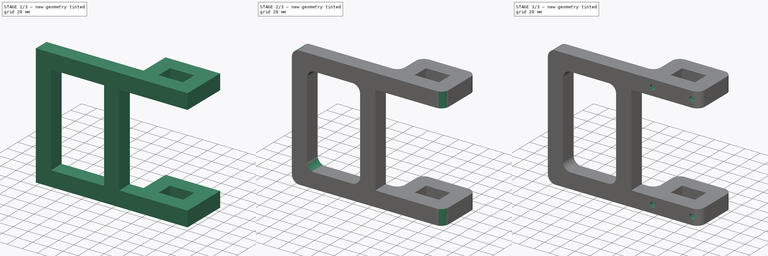
[diagram: build sequence overview — one tinted view per stage of 3, left to right]
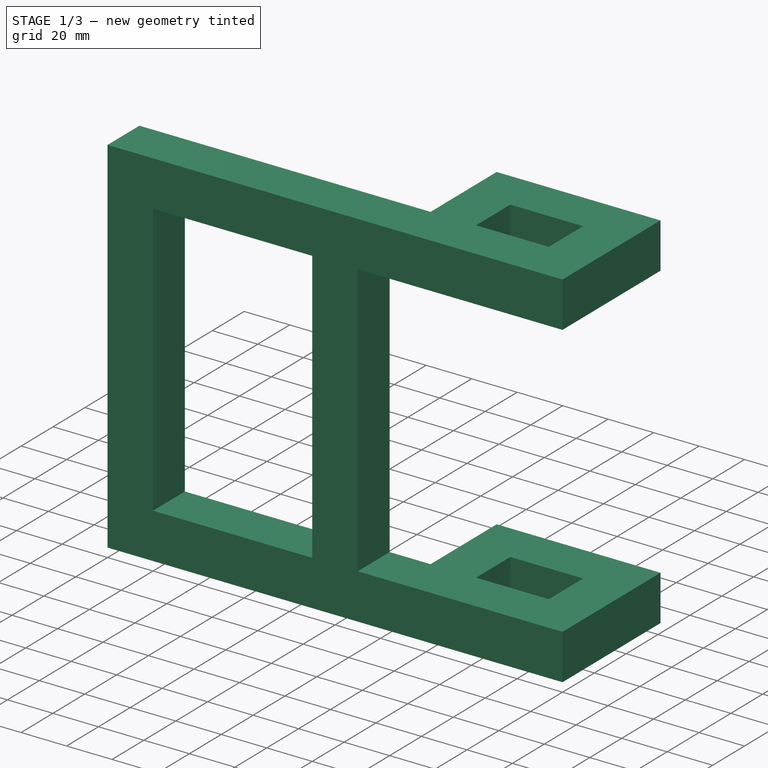
[diagram: stage 1 of 3 — iso view after this stage's code; geometry added in this stage tinted green]
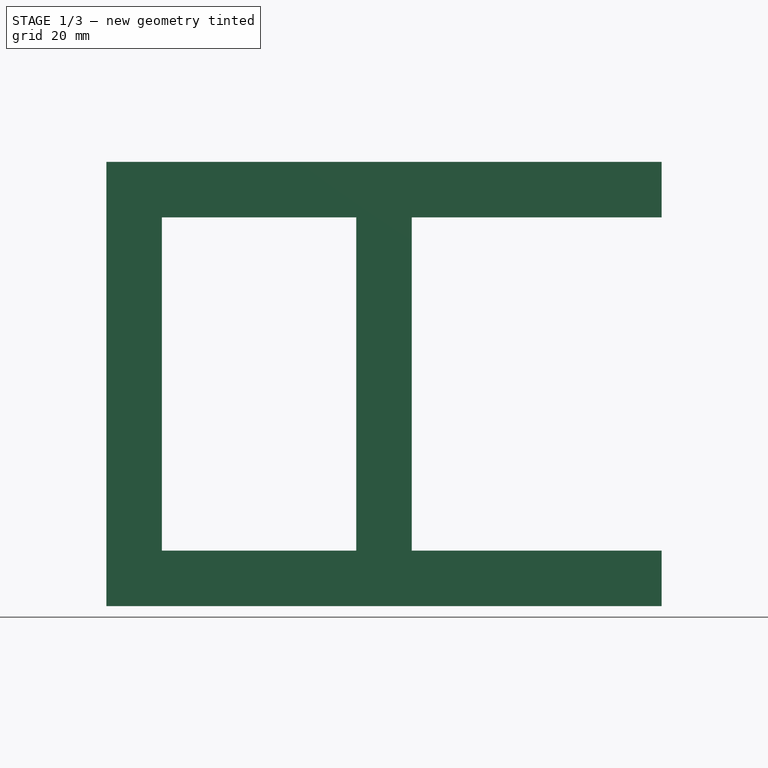
[diagram: stage 1 of 3 — front view after this stage's code; geometry added in this stage tinted green]
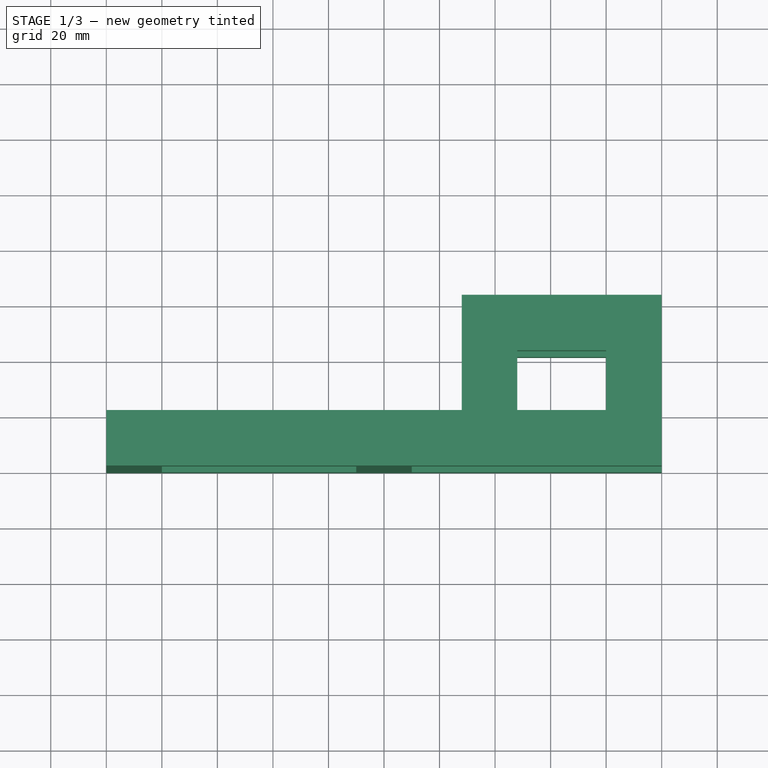
[diagram: stage 1 of 3 — top view after this stage's code; geometry added in this stage tinted green]
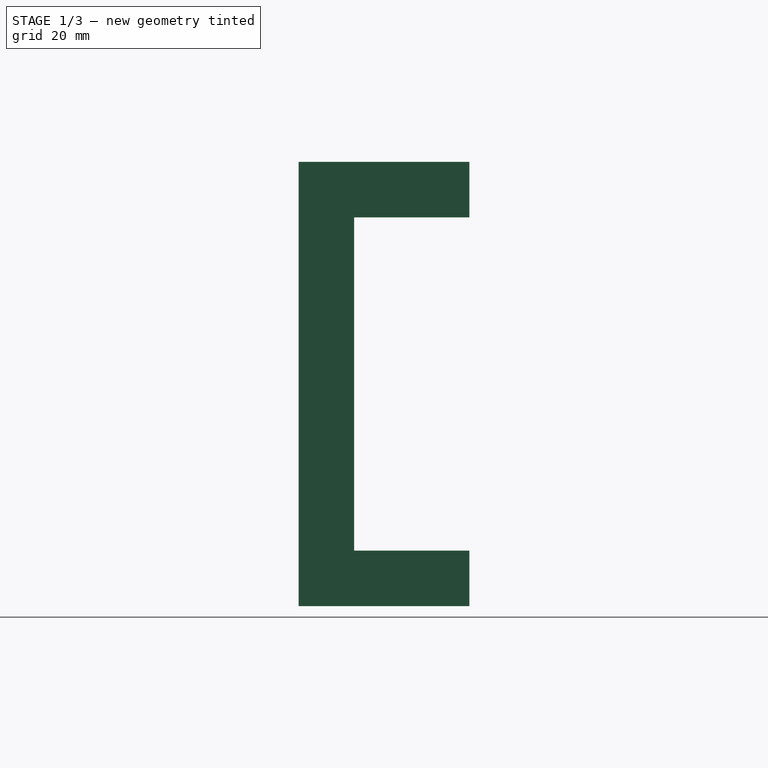
[diagram: stage 1 of 3 — right view after this stage's code; geometry added in this stage tinted green]
FCSTD DOCUMENT  (FreeCAD 1.0R39285 (Git))
Label: HallBarRail
License: All rights reserved
LicenseURL: https://en.wikipedia.org/wiki/All_rights_reserved
objects: Sketcher::SketchObject×4, PartDesign::Pocket×2, Spreadsheet::Sheet×1, PartDesign::Pad×1, PartDesign::Fillet×1, PartDesign::Hole×1, PartDesign::Body×1
note: 24 computed .brp shape members not serialized (recipe doc carries the construction recipe); baked Part::Feature solids carry a one-line shape summary decoded from their .brp

FEATURE [Sketcher::SketchObject] Sketch
  ArcFitTolerance = 1e-06
  AttachmentSupport = -> [XY_Plane]
  FullyConstrained = true
  MakeInternals = false
  MapMode = 5
  expr: Constraints[22] = <<config>>.thickness
  expr: Constraints[23] = <<config>>.thickness
  expr: Constraints[24] = <<config>>.thickness
  expr: Constraints[25] = <<config>>.thickness
  expr: Constraints[26] = <<config>>.thickness
  sketch-geometry (10):
    g0: LineSegment StartX=0 StartY=0 StartZ=0 EndX=200 EndY=0 EndZ=0
    g1: LineSegment StartX=200 StartY=0 StartZ=0 EndX=200 EndY=61.5 EndZ=0
    g2: LineSegment StartX=200 StartY=61.5 StartZ=0 EndX=128 EndY=61.5 EndZ=0
    g3: LineSegment StartX=128 StartY=61.5 StartZ=0 EndX=128 EndY=20 EndZ=0
    g4: LineSegment StartX=128 StartY=20 StartZ=0 EndX=0 EndY=20 EndZ=0
    g5: LineSegment StartX=0 StartY=20 StartZ=0 EndX=0 EndY=0 EndZ=0
    g6: LineSegment StartX=148 StartY=20 StartZ=0 EndX=148 EndY=41.5 EndZ=0
    g7: LineSegment StartX=148 StartY=41.5 StartZ=0 EndX=180 EndY=41.5 EndZ=0
    g8: LineSegment StartX=180 StartY=41.5 StartZ=0 EndX=180 EndY=20 EndZ=0
    g9: LineSegment StartX=180 StartY=20 StartZ=0 EndX=148 EndY=20 EndZ=0
  constraints (29):
    c: Coincident(g-1,g0)
    c: PointOnObject(g0,g-1)
    c: Coincident(g0,g1)
    c: Vertical(g1)
    c: Coincident(g1,g2)
    c: Horizontal(g2)
    c: Coincident(g2,g3)
    c: Vertical(g3)
    c: Coincident(g3,g4)
    c: PointOnObject(g4,g-2)
    c: Horizontal(g4)
    c: Coincident(g4,g5)
    c: Coincident(g5,g0)
    c: Coincident(g6,g7)
    c: Coincident(g7,g8)
    c: Coincident(g8,g9)
    c: Coincident(g9,g6)
    c: Vertical(g6)
    c: Vertical(g8)
    c: Horizontal(g7)
    c: Horizontal(g9)
    c: DistanceX(g0,g0) = 200
    c: DistanceY(g5,g5) = 20
    c: DistanceX(g8,g0) = 20
    c: DistanceX(g2,g6) = 20
    c: DistanceY(g7,g1) = 20
    c: DistanceY(g0,g8) = 20
    c: DistanceX(g9,g9) = 32
    c: DistanceY(g8,g8) = 21.5
FEATURE [Spreadsheet::Sheet] Spreadsheet  label="config"
  cells = A1='thickness; B1(thickness)==20 mm
FEATURE [PartDesign::Pad] Pad
  Direction = (0,0,1)
  Length = 160
  Length2 = 10
  Midplane = true
  Profile = -> Sketch
  ReferenceAxis = -> Sketch [N_Axis]
  Refine = true
  Suppressed = false
  Type = 0
FEATURE [Sketcher::SketchObject] Sketch001
  ArcFitTolerance = 1e-06
  AttachmentSupport = -> [XZ_Plane]
  ExternalGeometry = -> [Pad]
  FullyConstrained = true
  MakeInternals = false
  MapMode = 5
  Placement = pos=(0,0,0) rot=(1,0,0;1.5708rad)
  expr: Constraints[22] = <<config>>.thickness
  expr: Constraints[23] = <<config>>.thickness
  expr: Constraints[24] = <<config>>.thickness
  expr: Constraints[25] = <<config>>.thickness
  sketch-geometry (10):
    g0: LineSegment StartX=20 StartY=60 StartZ=0 EndX=20 EndY=-60 EndZ=0
    g1: LineSegment StartX=20 StartY=-60 StartZ=0 EndX=90 EndY=-60 EndZ=0
    g2: LineSegment StartX=90 StartY=-60 StartZ=0 EndX=90 EndY=60 EndZ=0
    g3: LineSegment StartX=90 StartY=60 StartZ=0 EndX=20 EndY=60 EndZ=0
    g4: LineSegment StartX=110 StartY=60 StartZ=0 EndX=110 EndY=-60 EndZ=0
    g5: LineSegment StartX=110 StartY=-60 StartZ=0 EndX=250 EndY=-60 EndZ=0
    g6: LineSegment StartX=250 StartY=-60 StartZ=0 EndX=250 EndY=60 EndZ=0
    g7: LineSegment StartX=250 StartY=60 StartZ=0 EndX=110 EndY=60 EndZ=0
    g8: LineSegment [constr] StartX=90 StartY=60 StartZ=0 EndX=110 EndY=60 EndZ=0
    g9: LineSegment [constr] StartX=90 StartY=-60 StartZ=0 EndX=110 EndY=-60 EndZ=0
  constraints (28):
    c: Coincident(g0,g1)
    c: Coincident(g1,g2)
    c: Coincident(g2,g3)
    c: Coincident(g3,g0)
    c: Vertical(g0)
    c: Vertical(g2)
    c: Horizontal(g1)
    c: Horizontal(g3)
    c: Coincident(g4,g5)
    c: Coincident(g5,g6)
    c: Coincident(g6,g7)
    c: Coincident(g7,g4)
    c: Vertical(g4)
    c: Vertical(g6)
    c: Horizontal(g5)
    c: Horizontal(g7)
    c: Coincident(g8,g2)
    c: Coincident(g8,g4)
    c: Coincident(g9,g1)
    c: Coincident(g9,g4)
    c: Horizontal(g8)
    c: Horizontal(g9)
    c: DistanceX(g-1,g0) = 20
    c: DistanceX(g9,g9) = 20
    c: DistanceY(g0,g-3) = 20
    c: DistanceY(g-4,g0) = 20
    c: DistanceX(g1,g1) = 70
    c: DistanceX(g5,g5) = 140
FEATURE [PartDesign::Pocket] Pocket
  BaseFeature = -> Pad
  Direction = (0,1,-2e-16)
  Length = 5
  Length2 = 5
  Profile = -> Sketch001
  ReferenceAxis = -> Sketch001 [N_Axis]
  Refine = true
  Suppressed = false
  Type = 1
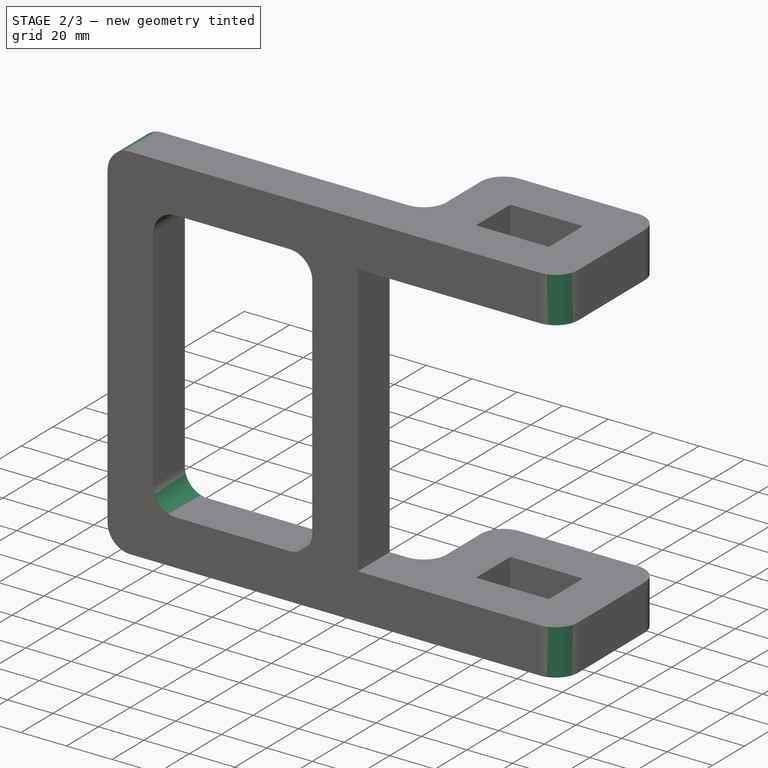
[diagram: stage 2 of 3 — iso view after this stage's code; geometry added in this stage tinted green]
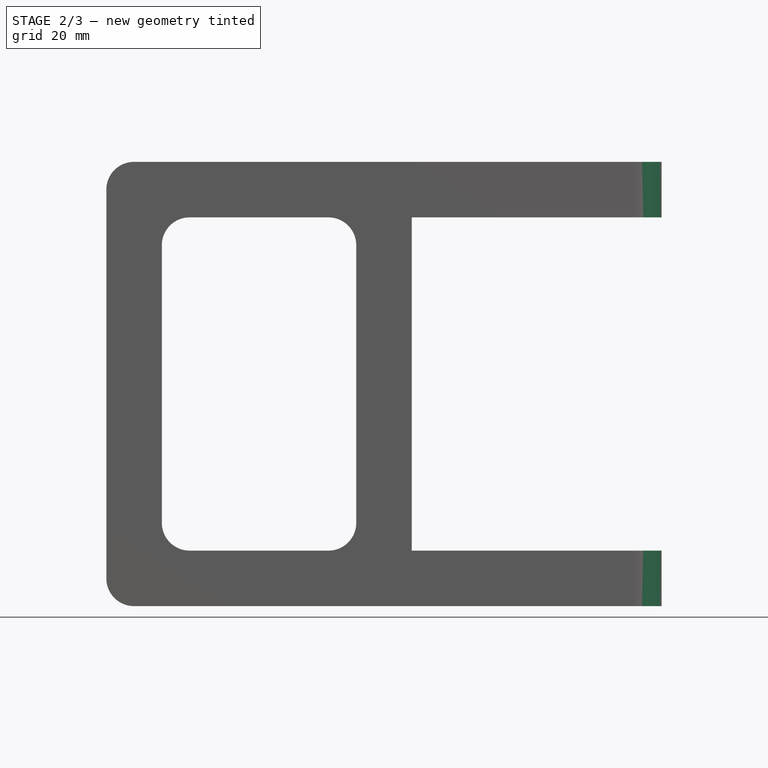
[diagram: stage 2 of 3 — front view after this stage's code; geometry added in this stage tinted green]
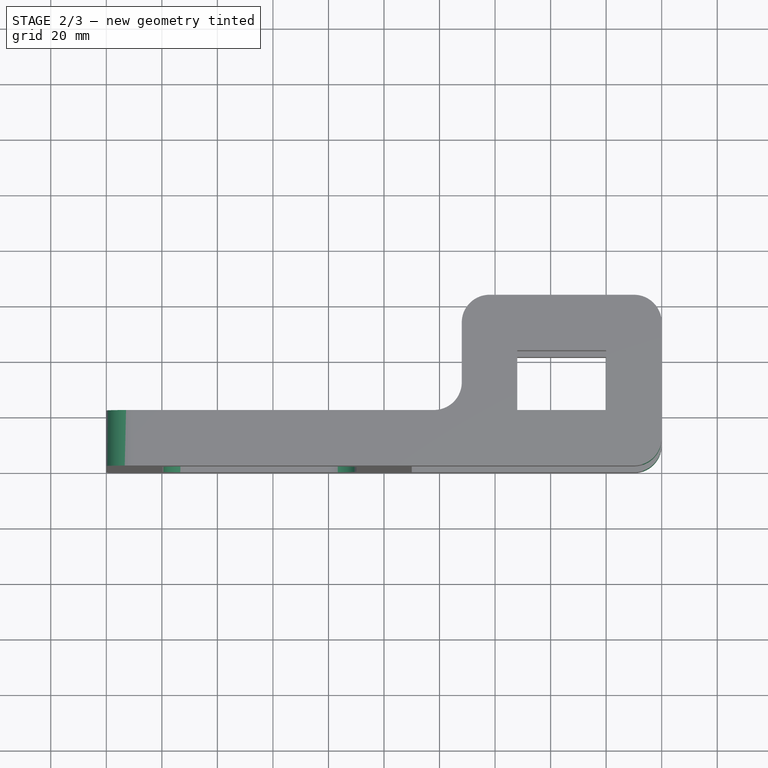
[diagram: stage 2 of 3 — top view after this stage's code; geometry added in this stage tinted green]
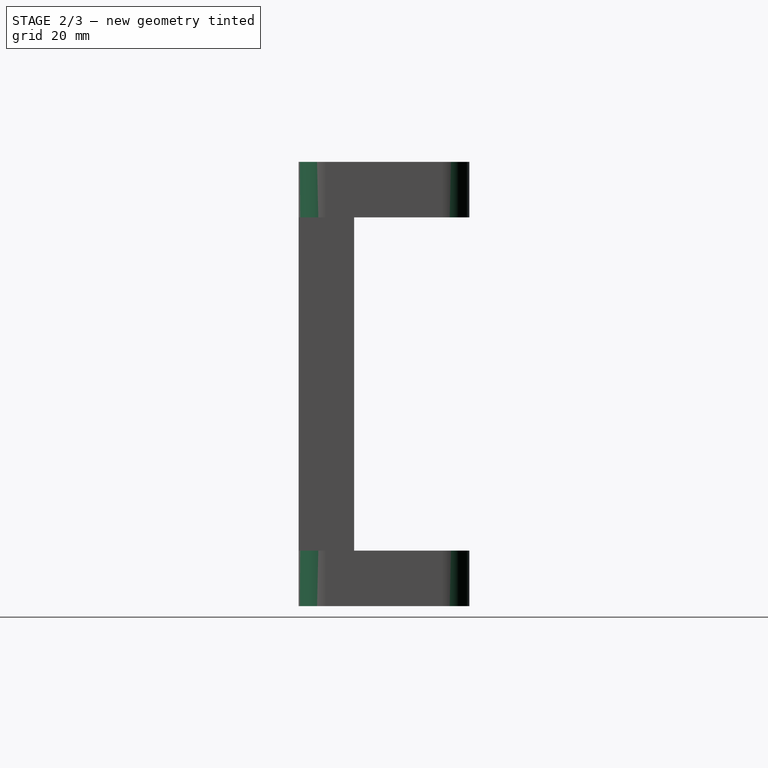
[diagram: stage 2 of 3 — right view after this stage's code; geometry added in this stage tinted green]
FEATURE [PartDesign::Fillet] Fillet
  Base = -> Pocket [Edge59,Edge47,Edge53,Edge17,Edge6,Edge42,Edge22,Edge2,Edge68,Edge61,Edge63,Edge62,Edge55,Edge57]
  BaseFeature = -> Pocket
  Radius = 10
  Refine = true
  SupportTransform = false
  Suppressed = false
  UseAllEdges = false
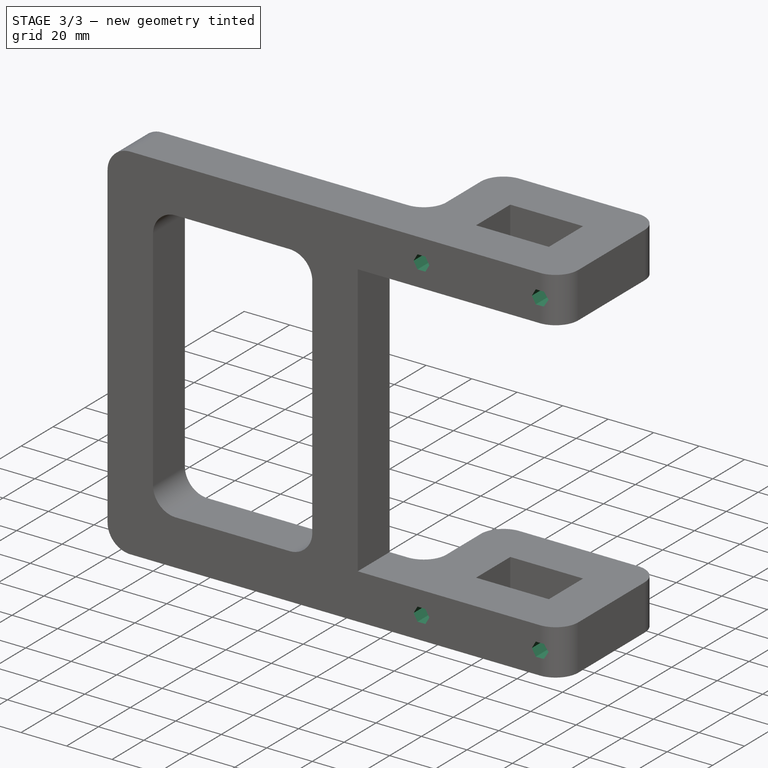
[diagram: stage 3 of 3 — iso view after this stage's code; geometry added in this stage tinted green]
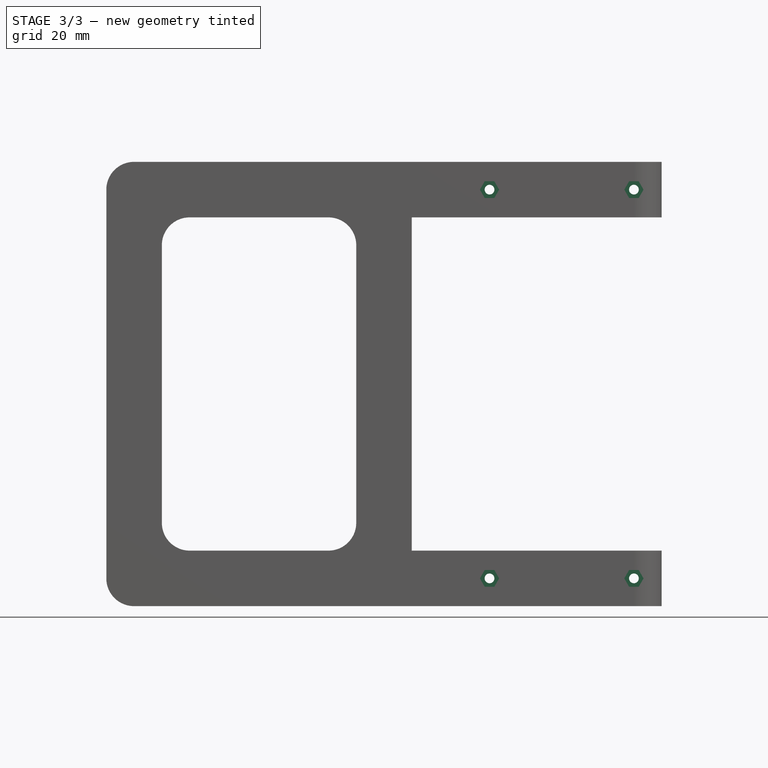
[diagram: stage 3 of 3 — front view after this stage's code; geometry added in this stage tinted green]
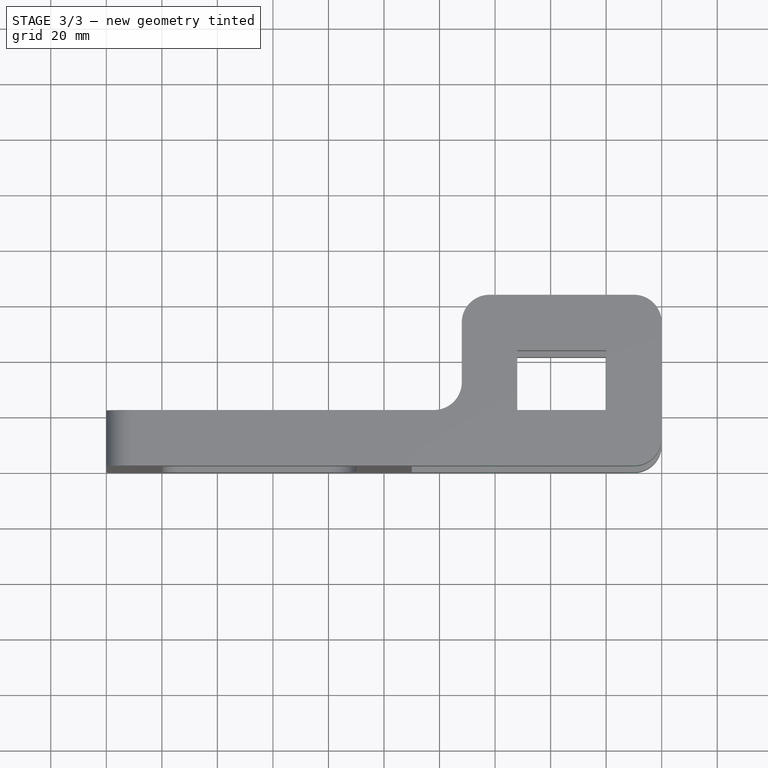
[diagram: stage 3 of 3 — top view after this stage's code; geometry added in this stage tinted green]
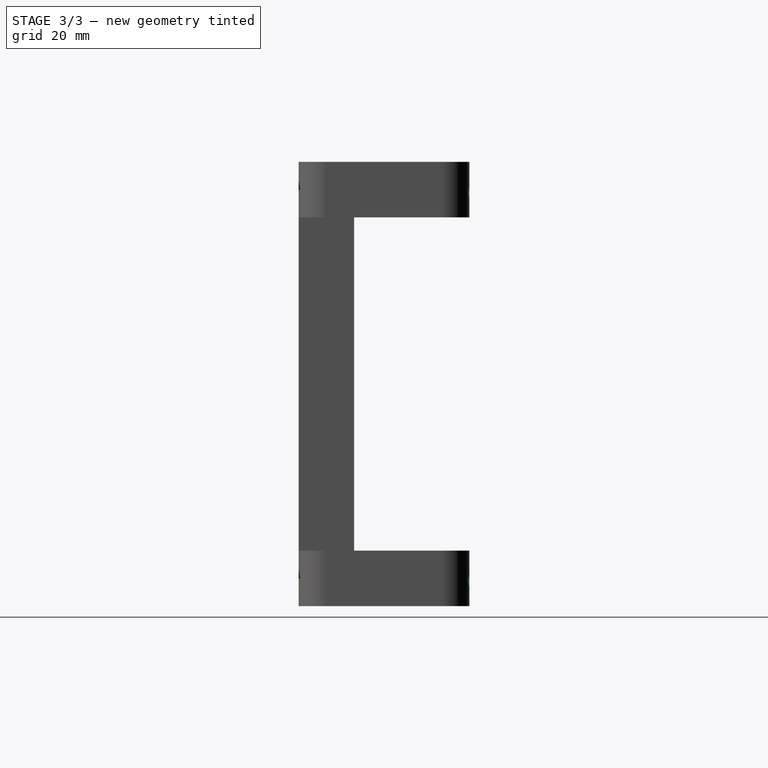
[diagram: stage 3 of 3 — right view after this stage's code; geometry added in this stage tinted green]
FEATURE [Sketcher::SketchObject] Sketch003
  ArcFitTolerance = 1e-06
  AttachmentSupport = -> [Fillet]
  ExternalGeometry = -> [Fillet]
  FullyConstrained = true
  MakeInternals = false
  MapMode = 5
  Placement = pos=(0,61.5,0) rot=(0,0.707107,0.707107;3.14159rad)
  sketch-geometry (12):
    g0: LineSegment [constr] StartX=-200 StartY=-80 StartZ=0 EndX=-190 EndY=-70 EndZ=0
    g1: LineSegment [constr] StartX=-190 StartY=-70 StartZ=0 EndX=-180 EndY=-60 EndZ=0
    g2: LineSegment [constr] StartX=-148 StartY=-60 StartZ=0 EndX=-138 EndY=-70 EndZ=0
    g3: LineSegment [constr] StartX=-138 StartY=-70 StartZ=0 EndX=-128 EndY=-80 EndZ=0
    g4: LineSegment [constr] StartX=-180 StartY=80 StartZ=0 EndX=-190 EndY=70 EndZ=0
    g5: LineSegment [constr] StartX=-190 StartY=70 StartZ=0 EndX=-200 EndY=60 EndZ=0
    g6: LineSegment [constr] StartX=-148 StartY=80 StartZ=0 EndX=-138 EndY=70 EndZ=0
    g7: LineSegment [constr] StartX=-138 StartY=70 StartZ=0 EndX=-128 EndY=60 EndZ=0
    g8: Circle CenterX=-190 CenterY=70 CenterZ=0 NormalX=0 NormalY=0 NormalZ=1 AngleXU=0 Radius=1.5
    g9: Circle CenterX=-138 CenterY=70 CenterZ=0 NormalX=0 NormalY=0 NormalZ=1 AngleXU=0 Radius=1.5
    g10: Circle CenterX=-190 CenterY=-70 CenterZ=0 NormalX=0 NormalY=0 NormalZ=1 AngleXU=0 Radius=1.5
    g11: Circle CenterX=-138 CenterY=-70 CenterZ=0 NormalX=0 NormalY=0 NormalZ=1 AngleXU=0 Radius=1.5
  constraints (28):
    c: Coincident(g0,g-5)
    c: Coincident(g1,g-7)
    c: Coincident(g0,g1)
    c: Parallel(g1,g0)
    c: Equal(g0,g1)
    c: Coincident(g-7,g2)
    c: Coincident(g2,g3)
    c: Coincident(g3,g-8)
    c: Parallel(g2,g3)
    c: Equal(g3,g2)
    c: Coincident(g4,g-10)
    c: Coincident(g5,g-3)
    c: Coincident(g6,g-11)
    c: Coincident(g7,g-12)
    c: Coincident(g4,g5)
    c: Coincident(g6,g7)
    c: Parallel(g7,g6)
    c: Parallel(g4,g5)
    c: Equal(g5,g4)
    c: Equal(g6,g7)
    c: Coincident(g8,g4)
    c: Coincident(g9,g6)
    c: Equal(g9,g8)
    c: Coincident(g10,g0)
    c: Coincident(g11,g2)
    c: Equal(g11,g10)
    c: Equal(g10,g8)
    c: Diameter(g8) = 3
FEATURE [PartDesign::Hole] Hole
  BaseFeature = -> Fillet
  CustomThreadClearance = 0
  Depth = 532.078
  DepthType = 1
  Diameter = 3.5
  DrillForDepth = false
  DrillPoint = 1
  DrillPointAngle = 118
  HoleCutCountersinkAngle = 90
  HoleCutCustomValues = false
  HoleCutDepth = 15
  HoleCutDiameter = 6
  HoleCutType = 1
  ModelThread = false
  Profile = -> Sketch003
  Refine = true
  Suppressed = false
  Tapered = false
  TaperedAngle = 90
  ThreadClass = 0
  ThreadDepth = 532.078
  ThreadDepthType = 0
  ThreadDirection = 0
  ThreadFit = 0
  ThreadSize = 0
  ThreadType = 0
  Threaded = false
  UseCustomThreadClearance = false
FEATURE [Sketcher::SketchObject] Sketch004
  ArcFitTolerance = 1e-06
  AttachmentSupport = -> [XZ_Plane]
  ExternalGeometry = -> [Hole]
  FullyConstrained = true
  MakeInternals = false
  MapMode = 5
  Placement = pos=(0,0,0) rot=(1,0,0;1.5708rad)
  sketch-geometry (28):
    g0: LineSegment StartX=141.464 StartY=-70 StartZ=0 EndX=139.732 EndY=-67 EndZ=0
    g1: LineSegment StartX=139.732 StartY=-67 StartZ=0 EndX=136.268 EndY=-67 EndZ=0
    g2: LineSegment StartX=136.268 StartY=-67 StartZ=0 EndX=134.536 EndY=-70 EndZ=0
    g3: LineSegment StartX=134.536 StartY=-70 StartZ=0 EndX=136.268 EndY=-73 EndZ=0
    g4: LineSegment StartX=136.268 StartY=-73 StartZ=0 EndX=139.732 EndY=-73 EndZ=0
    g5: LineSegment StartX=139.732 StartY=-73 StartZ=0 EndX=141.464 EndY=-70 EndZ=0
    g6: Circle [constr] CenterX=138 CenterY=-70 CenterZ=0 NormalX=0 NormalY=0 NormalZ=1 AngleXU=0 Radius=3.4641
    g7: LineSegment StartX=188.268 StartY=-73 StartZ=0 EndX=191.732 EndY=-73 EndZ=0
    g8: LineSegment StartX=191.732 StartY=-73 StartZ=0 EndX=193.464 EndY=-70 EndZ=0
    g9: LineSegment StartX=193.464 StartY=-70 StartZ=0 EndX=191.732 EndY=-67 EndZ=0
    g10: LineSegment StartX=191.732 StartY=-67 StartZ=0 EndX=188.268 EndY=-67 EndZ=0
    g11: LineSegment StartX=188.268 StartY=-67 StartZ=0 EndX=186.536 EndY=-70 EndZ=0
    g12: LineSegment StartX=186.536 StartY=-70 StartZ=0 EndX=188.268 EndY=-73 EndZ=0
    g13: Circle [constr] CenterX=190 CenterY=-70 CenterZ=0 NormalX=0 NormalY=0 NormalZ=1 AngleXU=0 Radius=3.4641
    g14: LineSegment StartX=139.732 StartY=67 StartZ=0 EndX=141.464 EndY=70 EndZ=0
    g15: LineSegment StartX=141.464 StartY=70 StartZ=0 EndX=139.732 EndY=73 EndZ=0
    g16: LineSegment StartX=139.732 StartY=73 StartZ=0 EndX=136.268 EndY=73 EndZ=0
    g17: LineSegment StartX=136.268 StartY=73 StartZ=0 EndX=134.536 EndY=70 EndZ=0
    g18: LineSegment StartX=134.536 StartY=70 StartZ=0 EndX=136.268 EndY=67 EndZ=0
    g19: LineSegment StartX=136.268 StartY=67 StartZ=0 EndX=139.732 EndY=67 EndZ=0
    g20: Circle [constr] CenterX=138 CenterY=70 CenterZ=0 NormalX=0 NormalY=0 NormalZ=1 AngleXU=0 Radius=3.4641
    g21: LineSegment StartX=188.268 StartY=67 StartZ=0 EndX=191.732 EndY=67 EndZ=0
    g22: LineSegment StartX=191.732 StartY=67 StartZ=0 EndX=193.464 EndY=70 EndZ=0
    g23: LineSegment StartX=193.464 StartY=70 StartZ=0 EndX=191.732 EndY=73 EndZ=0
    g24: LineSegment StartX=191.732 StartY=73 StartZ=0 EndX=188.268 EndY=73 EndZ=0
    g25: LineSegment StartX=188.268 StartY=73 StartZ=0 EndX=186.536 EndY=70 EndZ=0
    g26: LineSegment StartX=186.536 StartY=70 StartZ=0 EndX=188.268 EndY=67 EndZ=0
    g27: Circle [constr] CenterX=190 CenterY=70 CenterZ=0 NormalX=0 NormalY=0 NormalZ=1 AngleXU=0 Radius=3.4641
  constraints (64):
    c: Coincident(g0,g1)
    c: Coincident(g1,g2)
    c: Coincident(g2,g3)
    c: Coincident(g3,g4)
    c: Coincident(g4,g5)
    c: Coincident(g5,g0)
    c: Equal(g0, g1-g5) x5
    c: PointOnObject(g0,g6)
    c: PointOnObject(g1,g6)
    c: PointOnObject(g2,g6)
    c: PointOnObject(g3,g6)
    c: PointOnObject(g4,g6)
    c: PointOnObject(g5,g6)
    c: Coincident(g6,g-5)
    c: Coincident(g7,g8)
    c: Coincident(g8,g9)
    c: Coincident(g9,g10)
    c: Coincident(g10,g11)
    c: Coincident(g11,g12)
    c: Coincident(g12,g7)
    c: Equal(g7, g8-g12) x5
    c: PointOnObject(g7,g13)
    c: PointOnObject(g8,g13)
    c: PointOnObject(g9,g13)
    c: PointOnObject(g10,g13)
    c: PointOnObject(g11,g13)
    c: PointOnObject(g12,g13)
    c: Coincident(g13,g-6)
    c: Coincident(g14,g15)
    c: Coincident(g15,g16)
    c: Coincident(g16,g17)
    c: Coincident(g17,g18)
    c: Coincident(g18,g19)
    c: Coincident(g19,g14)
    c: Equal(g14, g15-g19) x5
    c: PointOnObject(g14,g20)
    c: PointOnObject(g15,g20)
    c: PointOnObject(g16,g20)
    c: PointOnObject(g17,g20)
    c: PointOnObject(g18,g20)
    c: PointOnObject(g19,g20)
    c: Coincident(g20,g-3)
    c: Coincident(g21,g22)
    c: Coincident(g22,g23)
    c: Coincident(g23,g24)
    c: Coincident(g24,g25)
    c: Coincident(g25,g26)
    c: Coincident(g26,g21)
    c: Equal(g21, g22-g26) x5
    c: PointOnObject(g21,g27)
    c: PointOnObject(g22,g27)
    c: PointOnObject(g23,g27)
    c: PointOnObject(g24,g27)
    c: PointOnObject(g25,g27)
    c: PointOnObject(g26,g27)
    c: Coincident(g27,g-4)
    c: Horizontal(g16)
    c: Horizontal(g24)
    c: Horizontal(g1)
    c: Horizontal(g10)
    c: Equal(g1,g10)
    c: Equal(g1,g16)
    c: Equal(g16,g24)
    c: DistanceY(g14,g15) = 6
FEATURE [PartDesign::Pocket] Pocket001
  BaseFeature = -> Hole
  Direction = (0,1,-2e-16)
  Length = 15
  Length2 = 5
  Profile = -> Sketch004
  ReferenceAxis = -> Sketch004 [N_Axis]
  Refine = true
  Suppressed = false
  Type = 0
FEATURE [PartDesign::Body] Body
  AllowCompound = false
  Group = -> [Sketch,Pad,Sketch001,Pocket,Fillet,Sketch003,Hole,Sketch004,Pocket001]
  Origin = -> Origin
  Tip = -> Pocket001
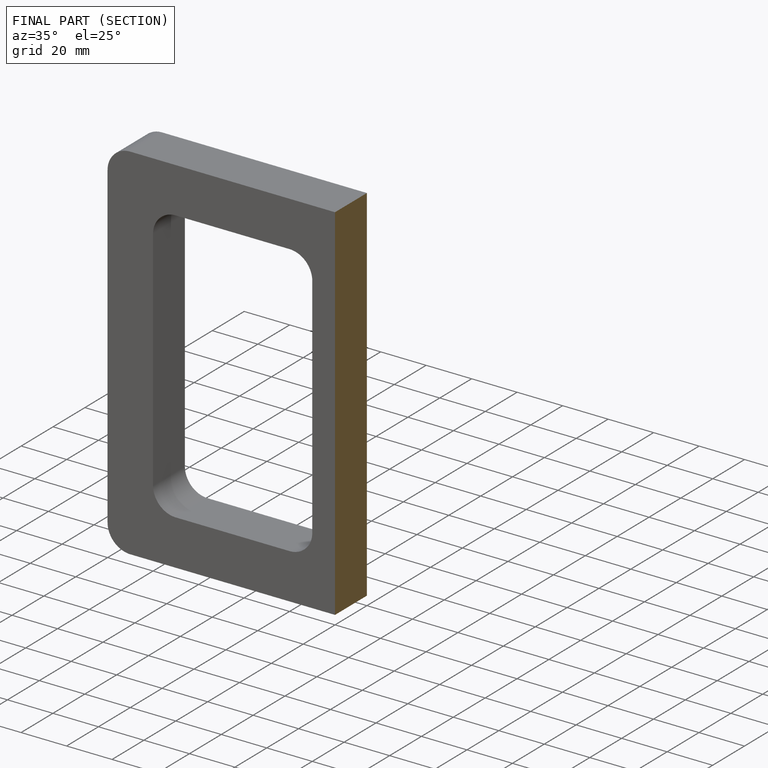
[diagram: finished part — half-section view (interior)]
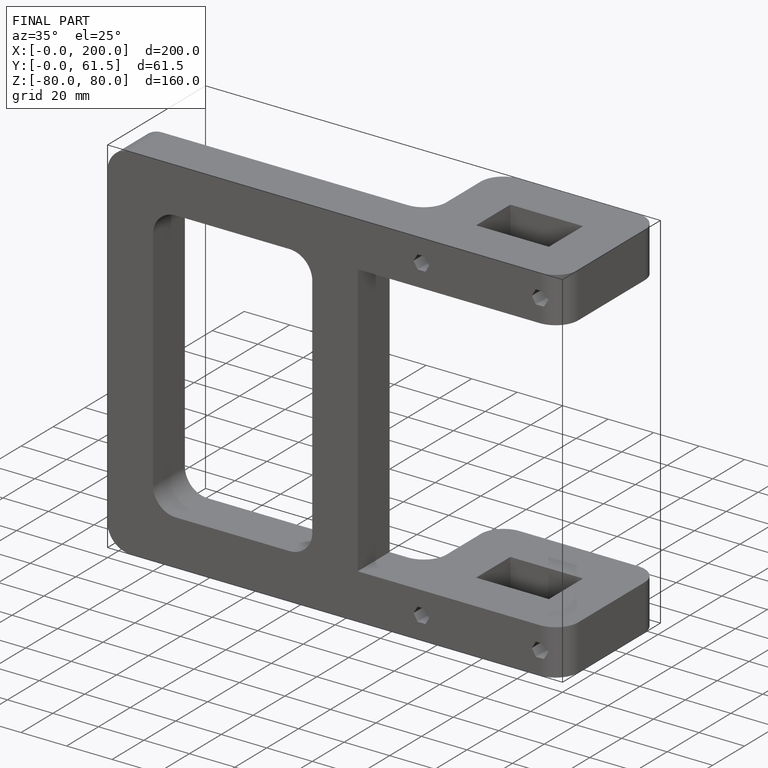
[diagram: finished part — iso view with bounding-box wireframe]
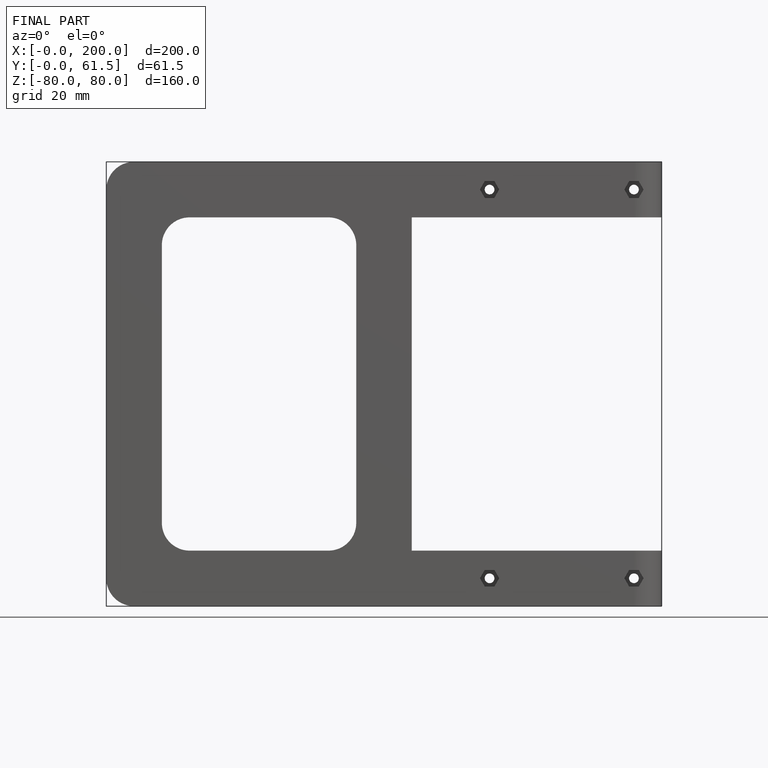
[diagram: finished part — front view with bounding-box wireframe]
